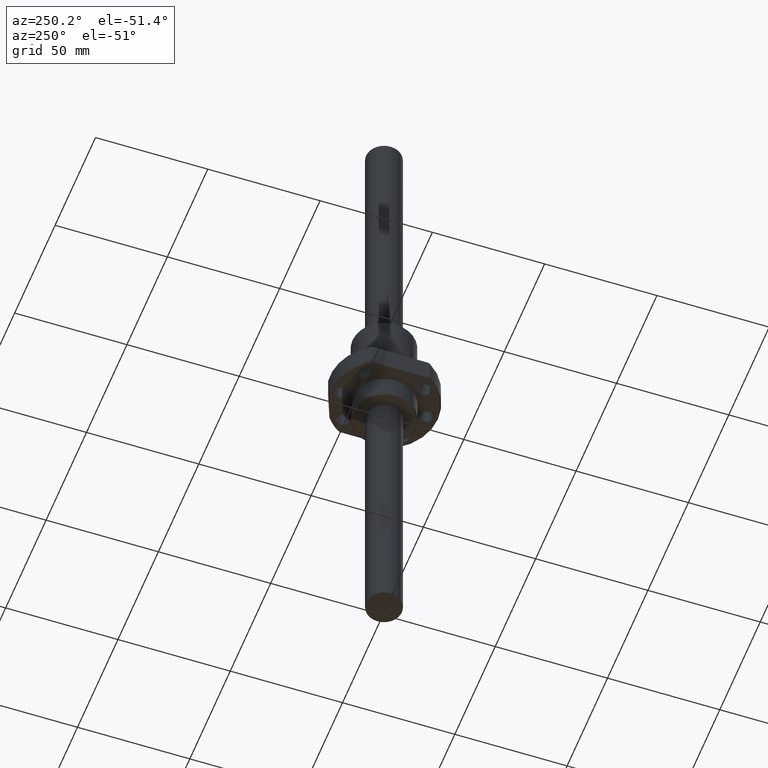
[diagram: clean part render]
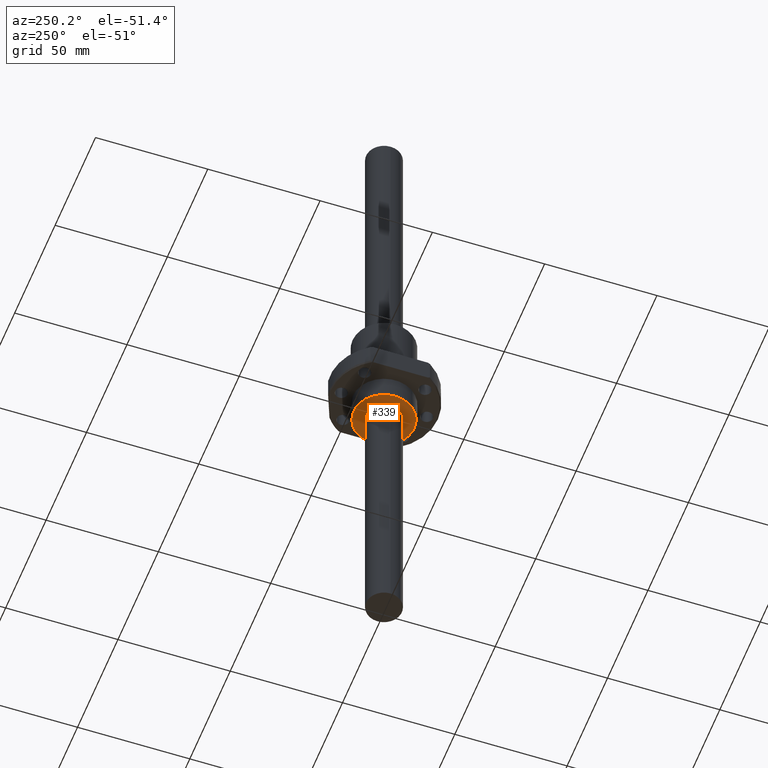
[diagram: same view with one face highlighted and labeled with its STEP entity id]
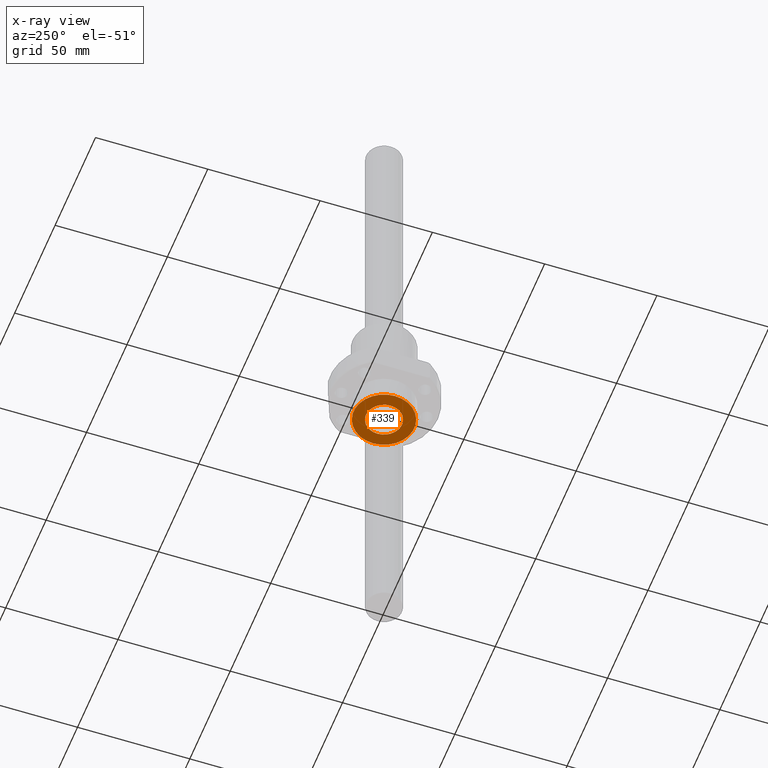
[diagram: x-ray of the same camera — body ghosted, the highlighted face saturated]
A machine part, auxiliary view. The second image highlights one B-rep face of the part: STEP entity #339.
The next image is the same camera in x-ray: the body ghosted, the highlighted face saturated — about 0% of this face is hidden behind the body in this view.
In plain terms, the highlighted planar face has unit normal (0, 0, 1).
Its self-contained STEP definition (entity closure, byte-faithful):
#70 = EDGE_CURVE ( 'NONE', #1835, #1183, #1586, .T. ) ;
#88 = CIRCLE ( 'NONE', #146, 13.50000000000000000 ) ;
#116 = CIRCLE ( 'NONE', #541, 13.50000000000000000 ) ;
#146 = AXIS2_PLACEMENT_3D ( 'NONE', #154, #354, #544 ) ;
#154 = CARTESIAN_POINT ( 'NONE',  ( 0.0000000000000000000, 0.0000000000000000000, 0.0000000000000000000 ) ) ;
#192 = DIRECTION ( 'NONE',  ( -0.0000000000000000000, -0.0000000000000000000, 1.000000000000000000 ) ) ;
#249 = DIRECTION ( 'NONE',  ( 0.0000000000000000000, 0.0000000000000000000, -1.000000000000000000 ) ) ;
#264 = DIRECTION ( 'NONE',  ( 0.0000000000000000000, -0.0000000000000000000, 1.000000000000000000 ) ) ;
#270 = CARTESIAN_POINT ( 'NONE',  ( 0.0000000000000000000, 0.0000000000000000000, 0.0000000000000000000 ) ) ;
#339 = ADVANCED_FACE ( 'NONE', ( #1519, #1379 ), #1713, .F. ) ;
#354 = DIRECTION ( 'NONE',  ( -0.0000000000000000000, -0.0000000000000000000, 1.000000000000000000 ) ) ;
#356 = CARTESIAN_POINT ( 'NONE',  ( -13.50000000000000000, 0.0000000000000000000, 0.0000000000000000000 ) ) ;
#379 = ORIENTED_EDGE ( 'NONE', *, *, #1680, .T. ) ;
#398 = CARTESIAN_POINT ( 'NONE',  ( 0.0000000000000000000, 0.0000000000000000000, 0.0000000000000000000 ) ) ;
#417 = VERTEX_POINT ( 'NONE', #356 ) ;
#505 = AXIS2_PLACEMENT_3D ( 'NONE', #1456, #940, #1761 ) ;
#541 = AXIS2_PLACEMENT_3D ( 'NONE', #398, #192, #1948 ) ;
#544 = DIRECTION ( 'NONE',  ( -1.000000000000000000, 0.0000000000000000000, 0.0000000000000000000 ) ) ;
#557 = ORIENTED_EDGE ( 'NONE', *, *, #1207, .F. ) ;
#621 = CARTESIAN_POINT ( 'NONE',  ( 8.000000000000000000, 0.0000000000000000000, 0.0000000000000000000 ) ) ;
#656 = ORIENTED_EDGE ( 'NONE', *, *, #1732, .T. ) ;
#717 = VERTEX_POINT ( 'NONE', #872 ) ;
#872 = CARTESIAN_POINT ( 'NONE',  ( 13.50000000000000000, 1.683889348827610900E-015, 0.0000000000000000000 ) ) ;
#940 = DIRECTION ( 'NONE',  ( 0.0000000000000000000, -0.0000000000000000000, 1.000000000000000000 ) ) ;
#961 = AXIS2_PLACEMENT_3D ( 'NONE', #1617, #249, #1557 ) ;
#1035 = EDGE_LOOP ( 'NONE', ( #656, #379 ) ) ;
#1174 = DIRECTION ( 'NONE',  ( 1.000000000000000000, 0.0000000000000000000, 0.0000000000000000000 ) ) ;
#1183 = VERTEX_POINT ( 'NONE', #1302 ) ;
#1207 = EDGE_CURVE ( 'NONE', #1183, #1835, #1728, .T. ) ;
#1302 = CARTESIAN_POINT ( 'NONE',  ( -8.000000000000000000, 9.797174393178825700E-016, 0.0000000000000000000 ) ) ;
#1379 = FACE_OUTER_BOUND ( 'NONE', #1035, .T. ) ;
#1445 = EDGE_LOOP ( 'NONE', ( #1776, #557 ) ) ;
#1456 = CARTESIAN_POINT ( 'NONE',  ( 0.0000000000000000000, 0.0000000000000000000, 0.0000000000000000000 ) ) ;
#1519 = FACE_BOUND ( 'NONE', #1445, .T. ) ;
#1557 = DIRECTION ( 'NONE',  ( -1.000000000000000000, 0.0000000000000000000, 0.0000000000000000000 ) ) ;
#1586 = CIRCLE ( 'NONE', #505, 8.000000000000000000 ) ;
#1617 = CARTESIAN_POINT ( 'NONE',  ( 13.66200000000000100, -13.66200000000000100, 0.0000000000000000000 ) ) ;
#1680 = EDGE_CURVE ( 'NONE', #717, #417, #116, .T. ) ;
#1713 = PLANE ( 'NONE',  #961 ) ;
#1728 = CIRCLE ( 'NONE', #1741, 8.000000000000000000 ) ;
#1732 = EDGE_CURVE ( 'NONE', #417, #717, #88, .T. ) ;
#1741 = AXIS2_PLACEMENT_3D ( 'NONE', #270, #264, #1174 ) ;
#1761 = DIRECTION ( 'NONE',  ( 1.000000000000000000, 0.0000000000000000000, 0.0000000000000000000 ) ) ;
#1776 = ORIENTED_EDGE ( 'NONE', *, *, #70, .F. ) ;
#1835 = VERTEX_POINT ( 'NONE', #621 ) ;
#1948 = DIRECTION ( 'NONE',  ( -1.000000000000000000, 0.0000000000000000000, 0.0000000000000000000 ) ) ;